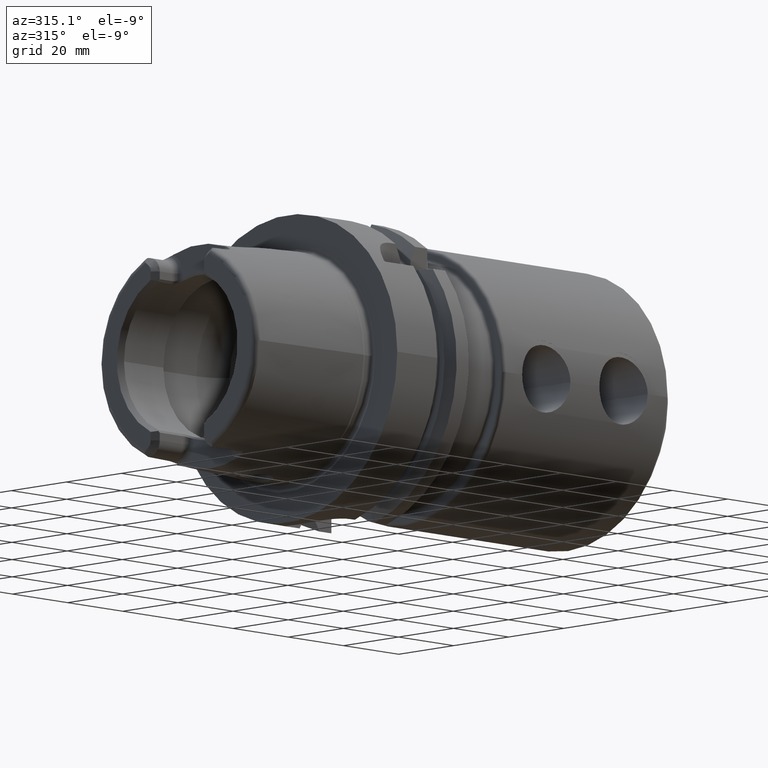
[diagram: clean part render]
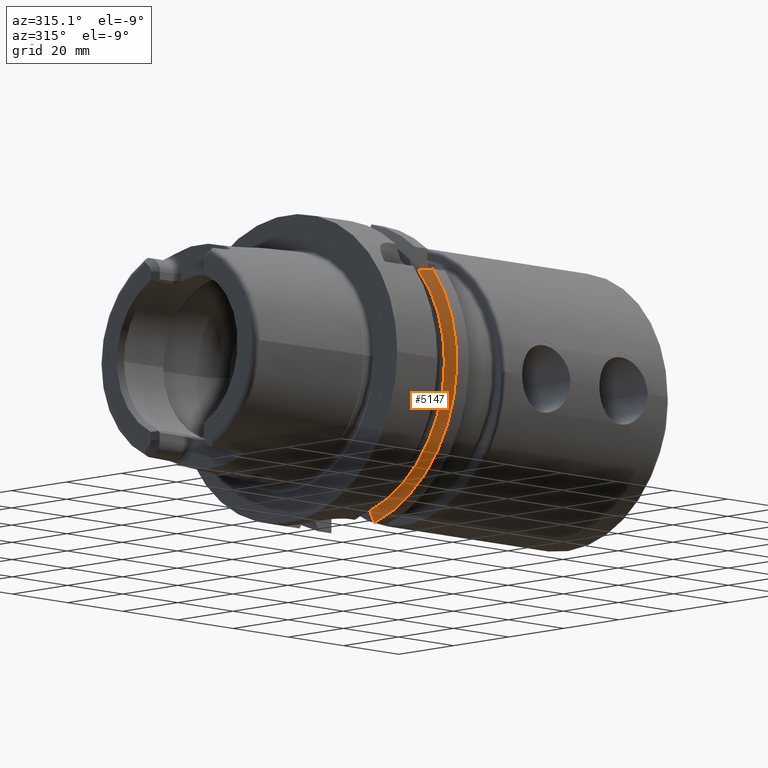
[diagram: same view with one face highlighted and labeled with its STEP entity id]
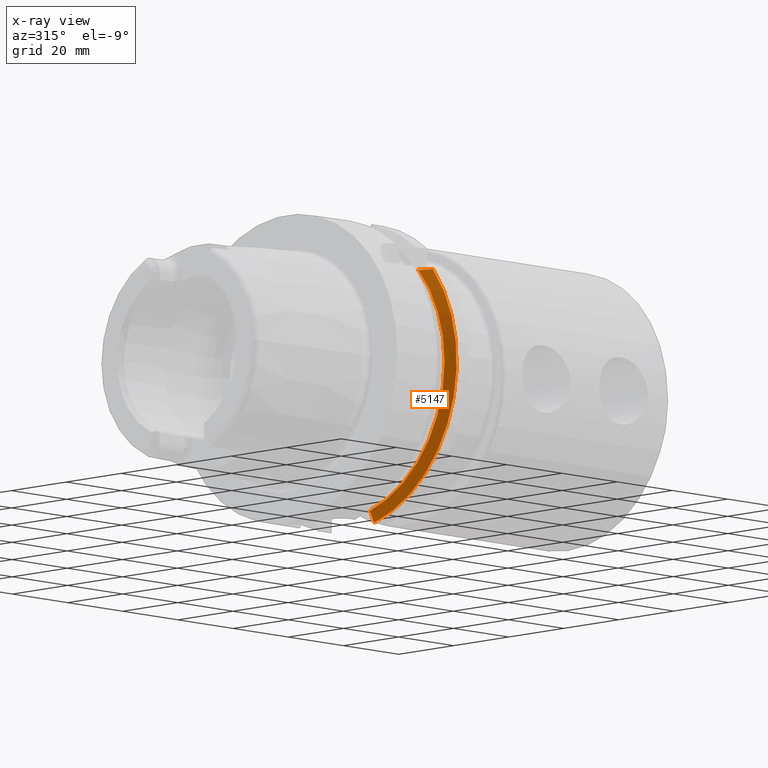
[diagram: x-ray of the same camera — body ghosted, the highlighted face saturated]
A machine part, auxiliary view. The second image highlights one B-rep face of the part: STEP entity #5147.
The next image is the same camera in x-ray: the body ghosted, the highlighted face saturated — about 0% of this face is hidden behind the body in this view.
In plain terms, the highlighted conical surface has half-angle 60 deg.
Its self-contained STEP definition (entity closure, byte-faithful):
#1253=CARTESIAN_POINT('',(2.153627039879E1,0.E0,0.E0));
#1254=DIRECTION('',(-1.E0,0.E0,0.E0));
#1255=DIRECTION('',(0.E0,-2.50525E-1,-9.681101302925E-1));
#1256=AXIS2_PLACEMENT_3D('',#1253,#1254,#1255);
#1388=CARTESIAN_POINT('',(1.99125E1,0.E0,0.E0));
#1389=DIRECTION('',(-1.E0,0.E0,0.E0));
#1390=DIRECTION('',(0.E0,-2.694719271032E-1,-9.630082452935E-1));
#1391=AXIS2_PLACEMENT_3D('',#1388,#1389,#1390);
#1971=CARTESIAN_POINT('',(1.99125E1,-1.0021E1,-3.581191454645E1));
#1972=CARTESIAN_POINT('',(2.008547872306E1,-1.0021E1,-3.612303123567E1));
#1973=CARTESIAN_POINT('',(2.043639262801E1,-1.0021E1,-3.675359013845E1));
#1974=CARTESIAN_POINT('',(2.097744952913E1,-1.0021E1,-3.772406589711E1));
#1975=CARTESIAN_POINT('',(2.134832259740E1,-1.0021E1,-3.838814683469E1));
#1976=CARTESIAN_POINT('',(2.153627039879E1,-1.0021E1,-3.872440521170E1));
#2069=CARTESIAN_POINT('',(1.99125E1,-2.766570375902E1,2.485E1));
#2070=CARTESIAN_POINT('',(2.007850245454E1,-2.805218725119E1,2.485E1));
#2071=CARTESIAN_POINT('',(2.042000032238E1,-2.884000309139E1,2.485E1));
#2072=CARTESIAN_POINT('',(2.095953074127E1,-3.006277679610E1,2.485E1));
#2073=CARTESIAN_POINT('',(2.134059076158E1,-3.091197836735E1,2.485E1));
#2074=CARTESIAN_POINT('',(2.153627039879E1,-3.134449712469E1,2.485E1));
#3381=CARTESIAN_POINT('',(1.99125E1,-1.0021E1,-3.581191454645E1));
#3383=VERTEX_POINT('',#3381);
#3384=VERTEX_POINT('',#1976);
#3429=CARTESIAN_POINT('',(1.99125E1,-2.766570375902E1,2.485E1));
#3430=VERTEX_POINT('',#3429);
#3431=VERTEX_POINT('',#2074);
#5133=CARTESIAN_POINT('',(2.072438519939E1,0.E0,0.E0));
#5134=DIRECTION('',(1.E0,0.E0,0.E0));
#5135=DIRECTION('',(0.E0,-1.E0,0.E0));
#5136=AXIS2_PLACEMENT_3D('',#5133,#5134,#5135);
#5137=CONICAL_SURFACE('',#5136,3.859377358474E1,6.E1);
#5138=ORIENTED_EDGE('',*,*,#5067,.F.);
#5140=ORIENTED_EDGE('',*,*,#5139,.F.);
#5142=ORIENTED_EDGE('',*,*,#5141,.T.);
#5144=ORIENTED_EDGE('',*,*,#5143,.T.);
#5145=EDGE_LOOP('',(#5138,#5140,#5142,#5144));
#5146=FACE_OUTER_BOUND('',#5145,.F.);
#5147=ADVANCED_FACE('',(#5146),#5137,.T.);
#1257=CIRCLE('',#1256,4.E1);
#1392=CIRCLE('',#1391,3.718754716948E1);
#1977=B_SPLINE_CURVE_WITH_KNOTS('',3,(#1971,#1972,#1973,#1974,#1975,#1976),
.UNSPECIFIED.,.F.,.F.,(4,1,1,4),(0.E0,3.333333333333E-1,6.666666666667E-1,1.E0),
.UNSPECIFIED.);
#2075=B_SPLINE_CURVE_WITH_KNOTS('',3,(#2069,#2070,#2071,#2072,#2073,#2074),
.UNSPECIFIED.,.F.,.F.,(4,1,1,4),(0.E0,3.333333333333E-1,6.666666666667E-1,1.E0),
.UNSPECIFIED.);
#5067=EDGE_CURVE('',#3384,#3431,#1257,.T.);
#5139=EDGE_CURVE('',#3383,#3384,#1977,.T.);
#5141=EDGE_CURVE('',#3383,#3430,#1392,.T.);
#5143=EDGE_CURVE('',#3430,#3431,#2075,.T.);